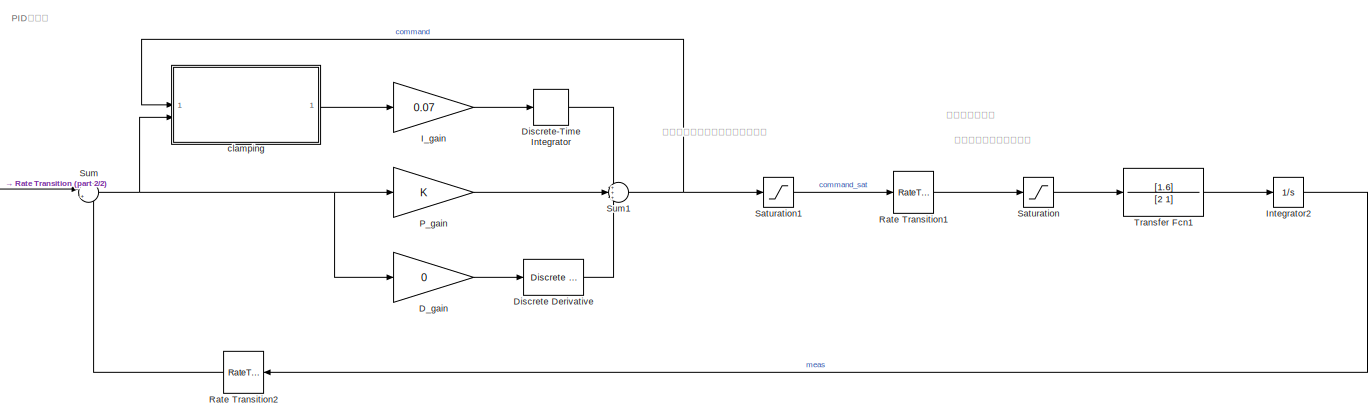
[diagram: root canvas - part 1/2, most of the canvas]
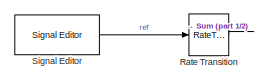
[diagram: root canvas - part 2/2, middle left region]
MODEL slx_88f439096b44
KIND model
CONFIG AbsTol = auto
CONFIG EnableMultiTasking = off
CONFIG FixedStep = auto
CONFIG MaxStep = auto
CONFIG MinStep = auto
CONFIG RelTol = 1e-3
CONFIG SampleTimeConstraint = Unconstrained
CONFIG SolverName = VariableStepAuto
CONFIG StartTime = 0.0
CONFIG StopTime = 60
BLOCK [Gain] D_gain
  Gain = 0
BLOCK [Reference] Discrete Derivative  REF=simulink/Discrete/Discrete Derivative
  SourceBlock = simulink/Discrete/Discrete Derivative
  SourceType = Discrete Derivative
BLOCK [DiscreteIntegrator] Discrete-Time Integrator
  ICPrevOutput = DiscIntNeverNeededParam
  ICPrevScaledInput = DiscIntNeverNeededParam
  InitialConditionSetting = Auto
  SampleTime = -1
BLOCK [Gain] I_gain
  Gain = 0.07
BLOCK [Integrator] Integrator2
BLOCK [Gain] P_gain
BLOCK [RateTransition] Rate Transition
  OutPortSampleTime = TimeStep
BLOCK [RateTransition] Rate Transition1
BLOCK [RateTransition] Rate Transition2
  OutPortSampleTime = TimeStep
BLOCK [Saturate] Saturation
  LowerLimit = -0.2
  UpperLimit = 0.2
BLOCK [Saturate] Saturation1
  LowerLimit = lower_limit
  UpperLimit = upper_limit
BLOCK [Reference] Signal Editor  REF=SignalEditorBlockLib/Signal Editor
  SourceBlock = SignalEditorBlockLib/Signal Editor
  SourceType = SignalEditor
  UserDataPersistent = on
BLOCK [Sum] Sum
  Inputs = |+-
BLOCK [Sum] Sum1
  Inputs = +++
BLOCK [TransferFcn] Transfer Fcn1
  Denominator = [2 1]
  Numerator = [1.6]
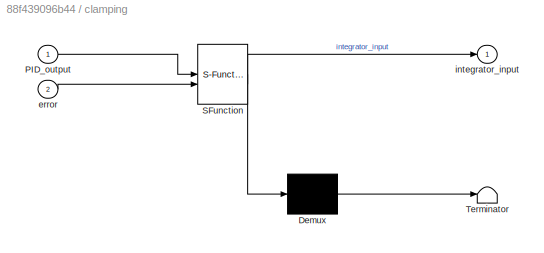
BLOCK [SubSystem] clamping
  ErrorFcn = Stateflow.Translate.translate
  PermitHierarchicalResolution = ExplicitOnly
  SFBlockType = Chart
  TreatAsAtomicUnit = on
BLOCK [Demux] clamping/ Demux 
  Outputs = 1
BLOCK [S-Function] clamping/ SFunction 
  EnableBusSupport = on
  FunctionName = sf_sfun
  Parameters = lower_limit,upper_limit
  PortCounts = [2 2]
  SFcnIsStateOwnerBlock = off
  SFunctionDeploymentMode = off
  Tag = Stateflow S-Function 3
BLOCK [Terminator] clamping/ Terminator 
BLOCK [Inport] clamping/PID_output
BLOCK [Inport] clamping/error
  Port = 2
BLOCK [Outport] clamping/integrator_input
ANNOTATION (root): PID制御器
ANNOTATION (root): アクチュエータの上下限
ANNOTATION (root): コントローラ内で設定した上下限
ANNOTATION (root): プラントモデル
LINE D_gain:1 -> Discrete Derivative:1
LINE Discrete Derivative:1 -> Sum1:3
LINE Discrete-Time Integrator:1 -> Sum1:1
LINE I_gain:1 -> Discrete-Time Integrator:1
LINE Integrator2:1 -> Rate Transition2:1
LINE P_gain:1 -> Sum1:2
LINE Rate Transition1:1 -> Saturation:1
LINE Rate Transition2:1 -> Sum:2
LINE Rate Transition:1 -> Sum:1
LINE Saturation1:1 -> Rate Transition1:1
LINE Saturation:1 -> Transfer Fcn1:1
LINE Signal Editor:1 -> Rate Transition:1
NET Sum1:1 -> Saturation1:1, clamping:1
NET Sum:1 -> D_gain:1, P_gain:1, clamping:2
LINE Transfer Fcn1:1 -> Integrator2:1
LINE clamping:1 -> I_gain:1
note: NET lines group one-source signal fan-out (src -> all destinations, sorted); 1:1 wires keep LINE
CHART clamping states=0 transitions=18
CHART  states=0 transitions=0
